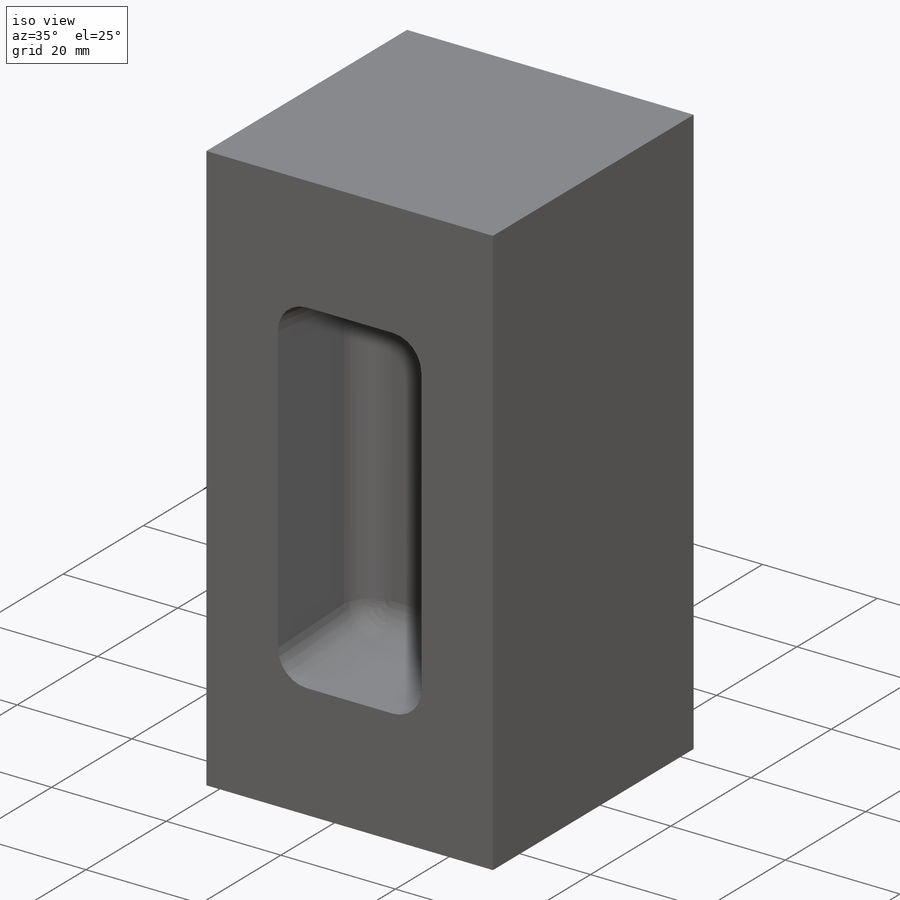
[diagram: iso view]
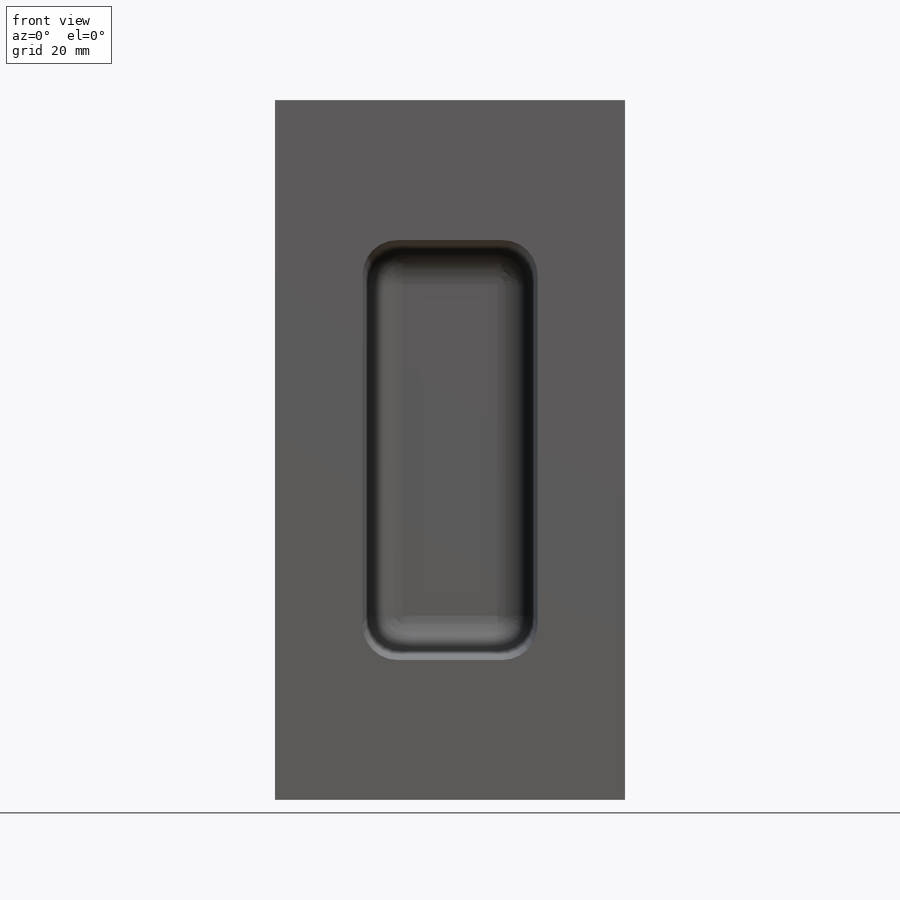
[diagram: front view]
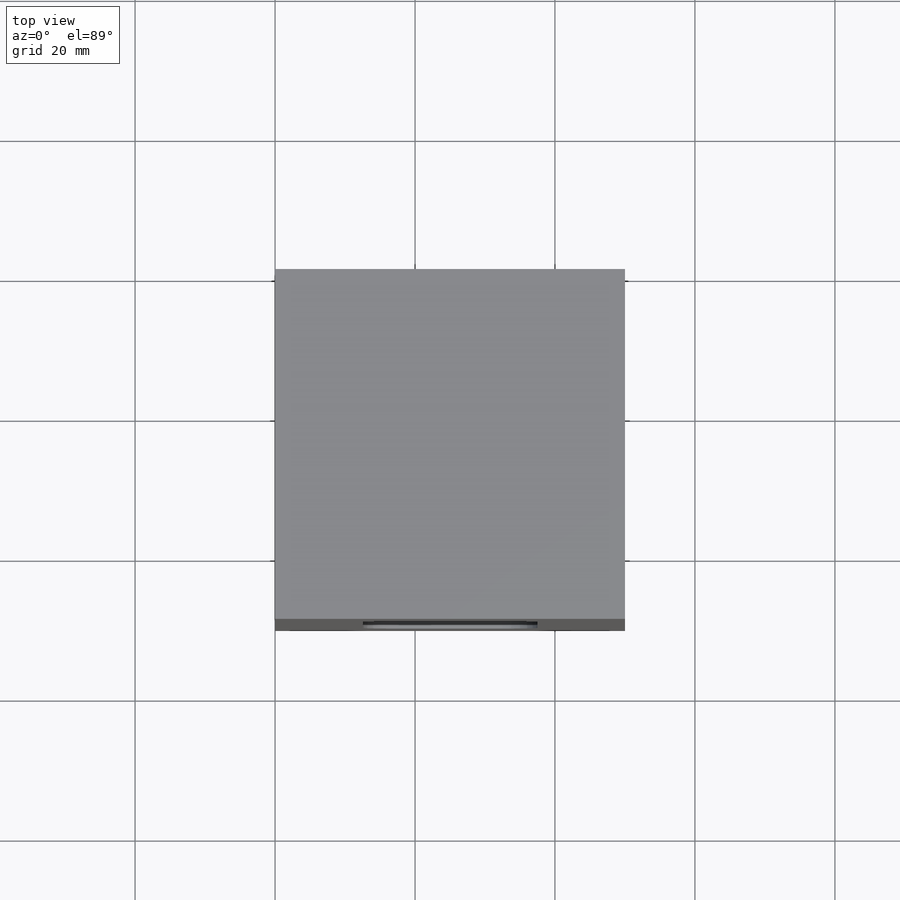
[diagram: top view]
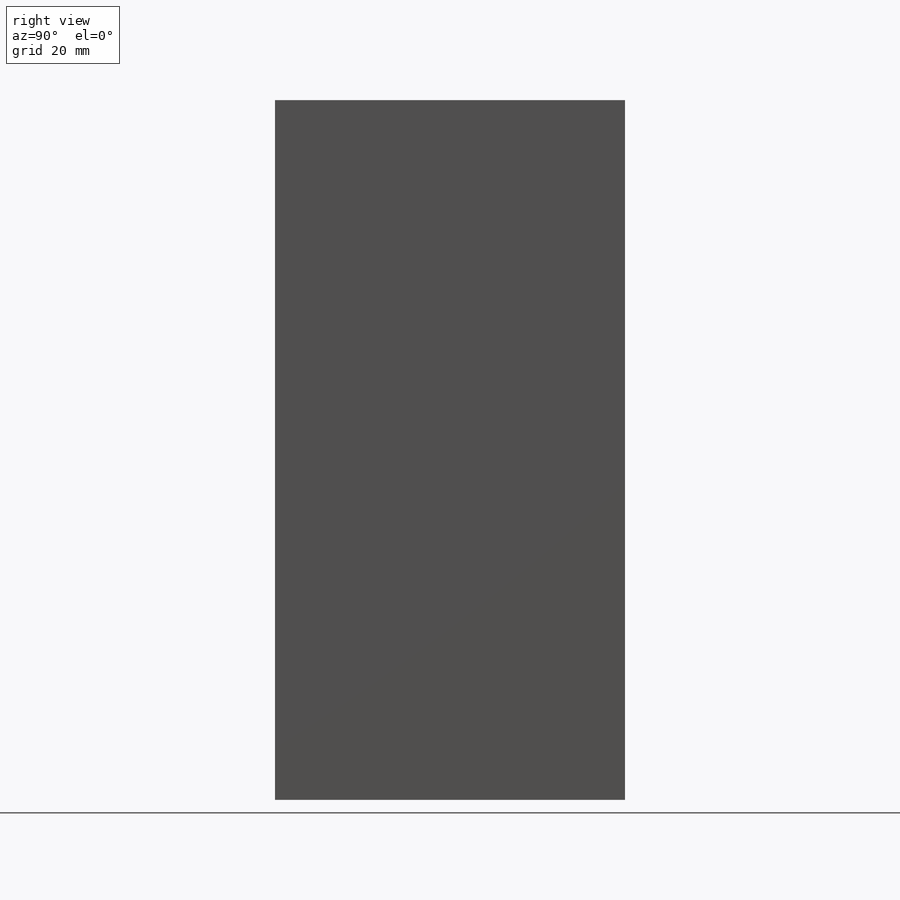
[diagram: right view]
SOLIDWORKS PART (.sldprt)
format: sldprt  version: not decoded by parser v0  size: 231,936 bytes
history: native  units: mm
features: plane x3, sketch x3, extrude x2, fillet x2, material x1, cut_extrude x1 (+9 scaffold rows collapsed)
feature tree (21):
  scaffold x9  (default folders/planes/origin — collapsed)
  material  "Material <nicht festgelegt>"
  plane  "Ebene vorne"
  plane  "Ebene oben"
  plane  "Ebene rechts"
  sketch  "Skizze1"  dims[D1=100.0mm D2=50.0mm]
  extrude  "Aufsatz-Linear austragen1"  Depth=50mm
  sketch  "Skizze2"  dims[D1=60.0mm D2=25.0mm]
  cut_extrude  "Schnitt-Linear austragen1"  Depth=20mm
  extrude  "Formschräge2"  [1 undecoded]
  fillet  "Verrundung1"  Radius=5mm
  sketch  "Skizze3"  dims[D1=0.0mm D2=1.5mm]
  fillet  "Verrundung2"  Radius=1mm
decode coverage: 7 of 8 modeling features carry decoded parameters
note: 1 parameter value undecoded
note: suppression state not decoded; provenance and decode notes live in map.json
